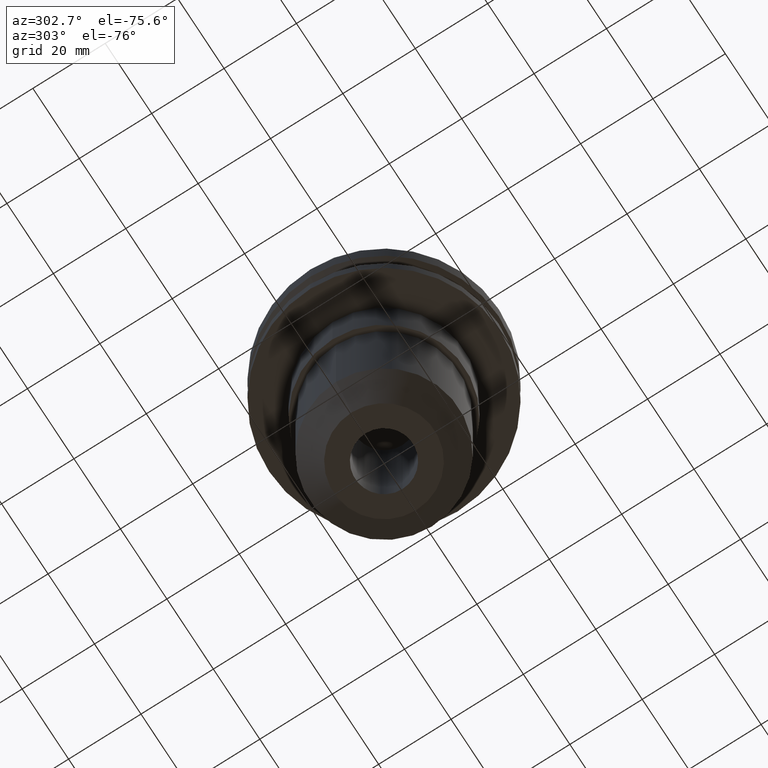
[diagram: clean part render]
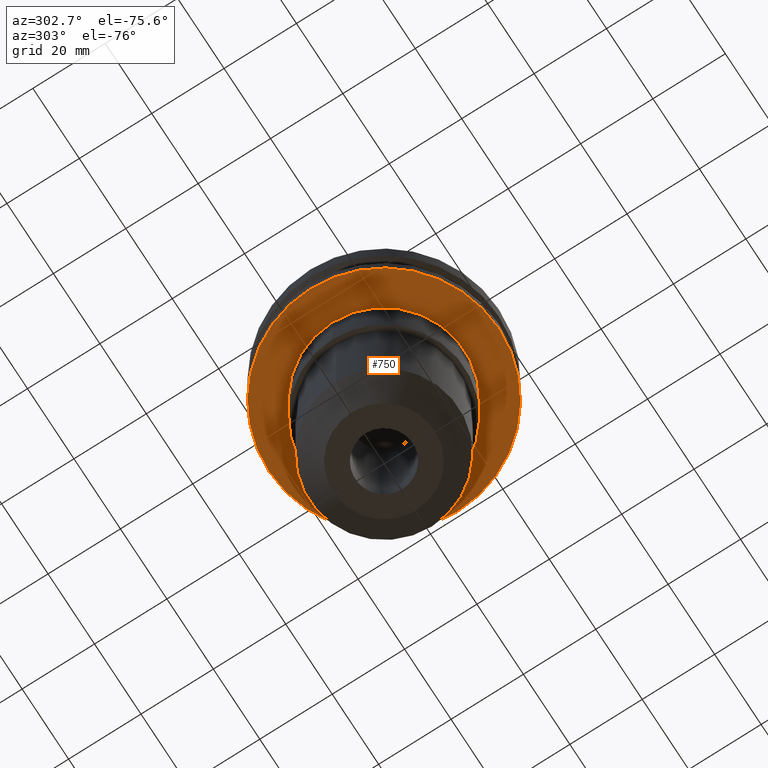
[diagram: same view with one face highlighted and labeled with its STEP entity id]
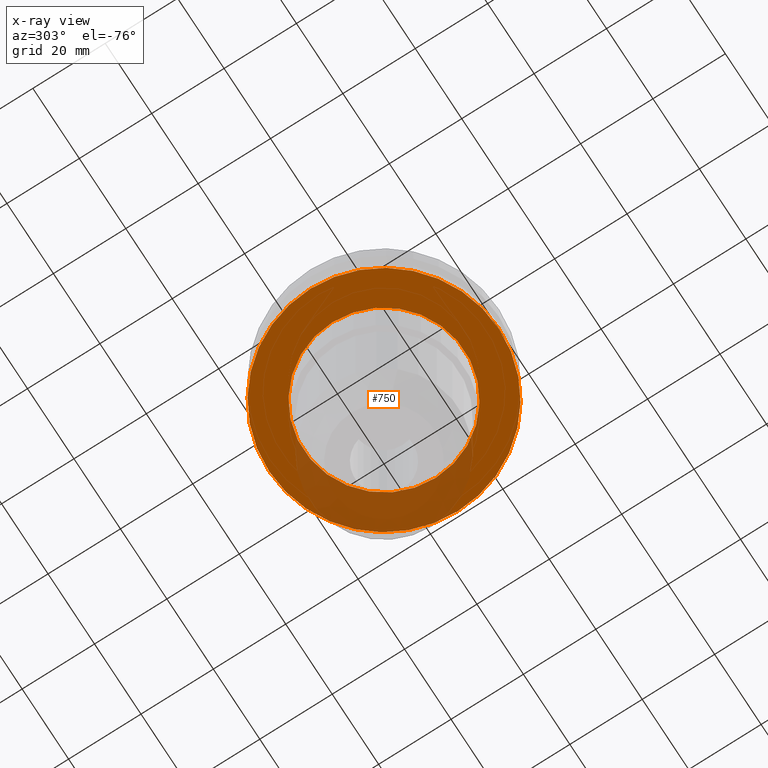
[diagram: x-ray of the same camera — body ghosted, the highlighted face saturated]
A machine part, auxiliary view. The second image highlights one B-rep face of the part: STEP entity #750.
The next image is the same camera in x-ray: the body ghosted, the highlighted face saturated — about 26% of this face is hidden behind the body in this view.
In plain terms, the highlighted planar face has unit normal (0, -0, 1).
Its self-contained STEP definition (entity closure, byte-faithful):
#25 = EDGE_CURVE ( 'NONE', #371, #512, #323, .T. ) ;
#26 = DIRECTION ( 'NONE',  ( -0.000000000000000000, -0.000000000000000000, 1.000000000000000000 ) ) ;
#44 = EDGE_LOOP ( 'NONE', ( #302, #853 ) ) ;
#54 = CIRCLE ( 'NONE', #546, 22.22500000000000142 ) ;
#59 = CARTESIAN_POINT ( 'NONE',  ( 0.000000000000000000, 0.000000000000000000, -19.04999999999999716 ) ) ;
#78 = EDGE_CURVE ( 'NONE', #105, #500, #54, .T. ) ;
#105 = VERTEX_POINT ( 'NONE', #341 ) ;
#118 = DIRECTION ( 'NONE',  ( -0.000000000000000000, -0.000000000000000000, 1.000000000000000000 ) ) ;
#184 = DIRECTION ( 'NONE',  ( 1.000000000000000000, 0.000000000000000000, 0.000000000000000000 ) ) ;
#193 = PLANE ( 'NONE',  #600 ) ;
#221 = EDGE_CURVE ( 'NONE', #512, #371, #425, .T. ) ;
#249 = EDGE_CURVE ( 'NONE', #500, #105, #556, .T. ) ;
#268 = DIRECTION ( 'NONE',  ( -0.000000000000000000, -0.000000000000000000, 1.000000000000000000 ) ) ;
#286 = DIRECTION ( 'NONE',  ( 1.000000000000000000, 0.000000000000000000, 0.000000000000000000 ) ) ;
#302 = ORIENTED_EDGE ( 'NONE', *, *, #249, .T. ) ;
#314 = AXIS2_PLACEMENT_3D ( 'NONE', #421, #423, #286 ) ;
#318 = FACE_BOUND ( 'NONE', #44, .T. ) ;
#323 = CIRCLE ( 'NONE', #639, 31.74999999999999289 ) ;
#330 = CARTESIAN_POINT ( 'NONE',  ( 22.22500000000000142, 0.000000000000000000, -19.04999999999999716 ) ) ;
#341 = CARTESIAN_POINT ( 'NONE',  ( -22.22500000000000142, 2.721777511104992849E-15, -19.04999999999999716 ) ) ;
#370 = AXIS2_PLACEMENT_3D ( 'NONE', #687, #26, #484 ) ;
#371 = VERTEX_POINT ( 'NONE', #763 ) ;
#372 = CARTESIAN_POINT ( 'NONE',  ( 0.000000000000000000, 31.74999999999999289, -19.04999999999999716 ) ) ;
#421 = CARTESIAN_POINT ( 'NONE',  ( 0.000000000000000000, 0.000000000000000000, -19.04999999999999716 ) ) ;
#423 = DIRECTION ( 'NONE',  ( -0.000000000000000000, -0.000000000000000000, 1.000000000000000000 ) ) ;
#425 = CIRCLE ( 'NONE', #314, 31.74999999999999289 ) ;
#428 = ORIENTED_EDGE ( 'NONE', *, *, #221, .F. ) ;
#456 = FACE_OUTER_BOUND ( 'NONE', #596, .T. ) ;
#457 = CARTESIAN_POINT ( 'NONE',  ( 31.74999999999999289, 0.000000000000000000, -19.04999999999999716 ) ) ;
#484 = DIRECTION ( 'NONE',  ( 1.000000000000000000, 0.000000000000000000, 0.000000000000000000 ) ) ;
#500 = VERTEX_POINT ( 'NONE', #330 ) ;
#512 = VERTEX_POINT ( 'NONE', #457 ) ;
#546 = AXIS2_PLACEMENT_3D ( 'NONE', #725, #118, #653 ) ;
#556 = CIRCLE ( 'NONE', #370, 22.22500000000000142 ) ;
#596 = EDGE_LOOP ( 'NONE', ( #428, #700 ) ) ;
#600 = AXIS2_PLACEMENT_3D ( 'NONE', #372, #654, #184 ) ;
#639 = AXIS2_PLACEMENT_3D ( 'NONE', #59, #268, #714 ) ;
#653 = DIRECTION ( 'NONE',  ( 1.000000000000000000, 0.000000000000000000, 0.000000000000000000 ) ) ;
#654 = DIRECTION ( 'NONE',  ( 0.000000000000000000, -0.000000000000000000, 1.000000000000000000 ) ) ;
#687 = CARTESIAN_POINT ( 'NONE',  ( 0.000000000000000000, 0.000000000000000000, -19.04999999999999716 ) ) ;
#700 = ORIENTED_EDGE ( 'NONE', *, *, #25, .F. ) ;
#714 = DIRECTION ( 'NONE',  ( 1.000000000000000000, 0.000000000000000000, 0.000000000000000000 ) ) ;
#725 = CARTESIAN_POINT ( 'NONE',  ( 0.000000000000000000, 0.000000000000000000, -19.04999999999999716 ) ) ;
#750 = ADVANCED_FACE ( 'NONE', ( #456, #318 ), #193, .F. ) ;
#763 = CARTESIAN_POINT ( 'NONE',  ( -31.74999999999999289, 3.888253587292845687E-15, -19.04999999999999716 ) ) ;
#853 = ORIENTED_EDGE ( 'NONE', *, *, #78, .T. ) ;